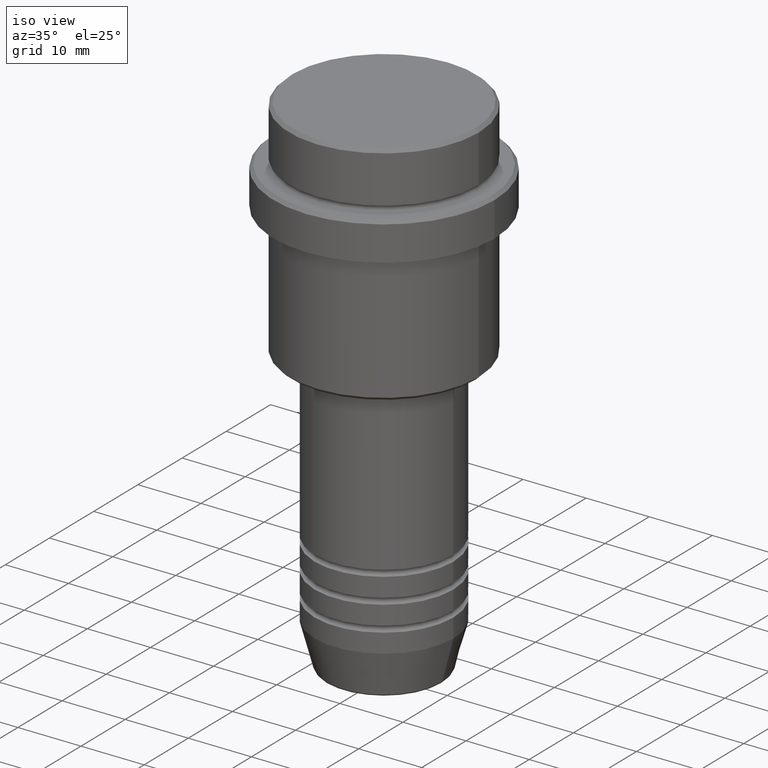
[diagram: clean part render]
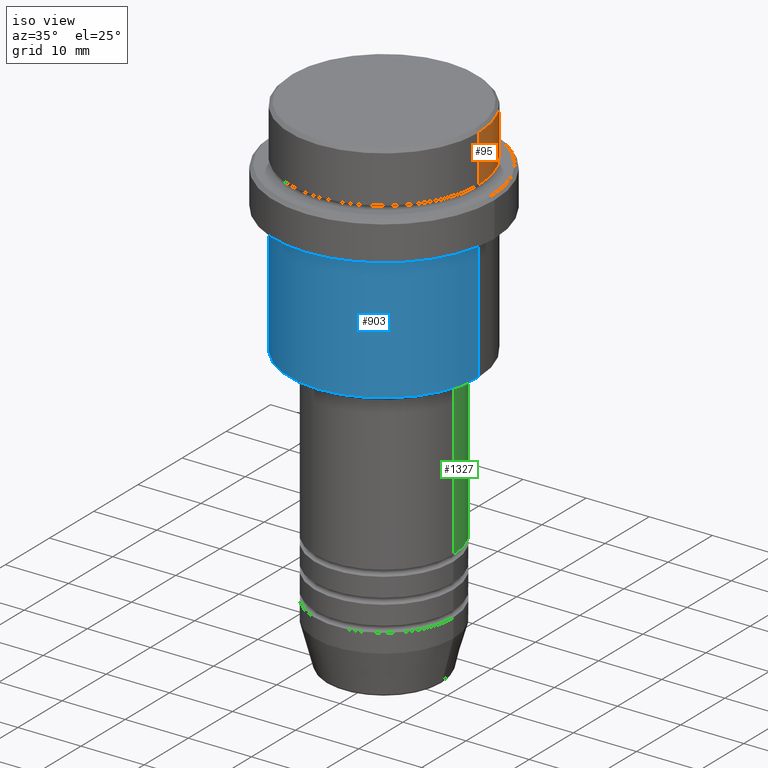
[diagram: same view with three faces highlighted in distinct colors, each labeled with its STEP entity id]
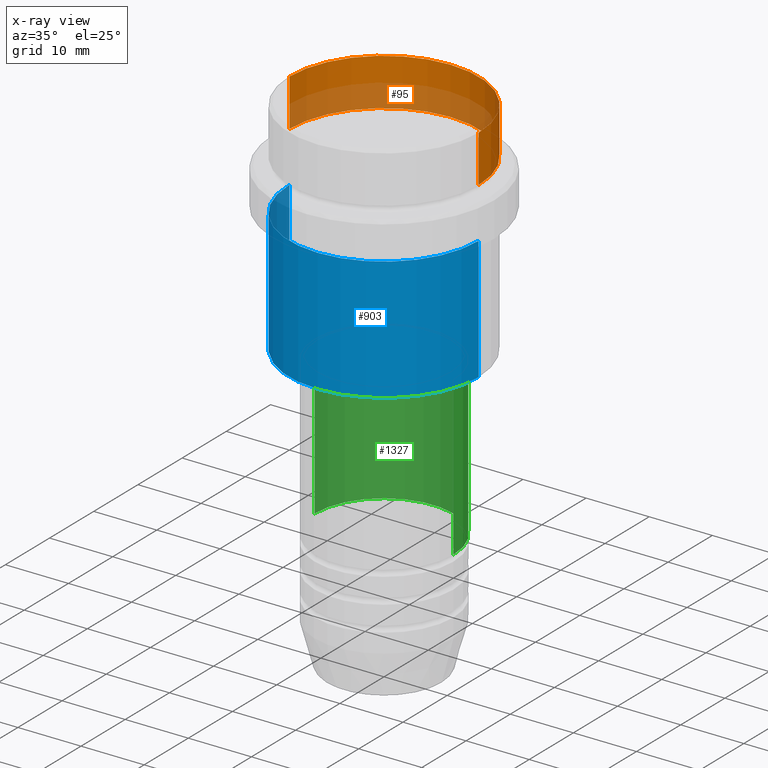
[diagram: x-ray of the same camera — body ghosted, the three highlighted faces saturated]
A machine part, iso view with three faces highlighted in distinct colors.
The next image is the same camera in x-ray (body ghosted, the three faces saturated) — at least one of them is partly hidden behind the body in this view.
Their STEP definitions:

[orange] entity #95 — the highlighted cylindrical surface (partial cylindrical patch) has radius 15 mm, axis along (-0, -0, 1).
#9 = ORIENTED_EDGE ( 'NONE', *, *, #926, .F. ) ;
#34 = ORIENTED_EDGE ( 'NONE', *, *, #1005, .T. ) ;
#95 = ADVANCED_FACE ( 'NONE', ( #1018 ), #773, .T. ) ;
#99 = VERTEX_POINT ( 'NONE', #449 ) ;
#155 = ORIENTED_EDGE ( 'NONE', *, *, #1360, .T. ) ;
#173 = AXIS2_PLACEMENT_3D ( 'NONE', #454, #1102, #352 ) ;
#194 = LINE ( 'NONE', #1076, #653 ) ;
#237 = CIRCLE ( 'NONE', #173, 15.00000000000000000 ) ;
#281 = VERTEX_POINT ( 'NONE', #927 ) ;
#294 = DIRECTION ( 'NONE',  ( -0.000000000000000000, -0.000000000000000000, 1.000000000000000000 ) ) ;
#352 = DIRECTION ( 'NONE',  ( 1.000000000000000000, 0.000000000000000000, 0.000000000000000000 ) ) ;
#360 = CARTESIAN_POINT ( 'NONE',  ( 15.00000000000000000, 0.000000000000000000, 0.000000000000000000 ) ) ;
#449 = CARTESIAN_POINT ( 'NONE',  ( 15.00000000000000000, 0.000000000000000000, -7.999999999999998224 ) ) ;
#454 = CARTESIAN_POINT ( 'NONE',  ( 0.000000000000000000, 0.000000000000000000, -7.999999999999998224 ) ) ;
#457 = DIRECTION ( 'NONE',  ( -0.000000000000000000, -0.000000000000000000, 1.000000000000000000 ) ) ;
#459 = CARTESIAN_POINT ( 'NONE',  ( -15.00000000000000000, 1.836970198721029589E-15, -0.4999999999999970024 ) ) ;
#462 = CARTESIAN_POINT ( 'NONE',  ( 0.000000000000000000, 0.000000000000000000, 0.000000000000000000 ) ) ;
#595 = CARTESIAN_POINT ( 'NONE',  ( 0.000000000000000000, 0.000000000000000000, -0.4999999999999970024 ) ) ;
#653 = VECTOR ( 'NONE', #294, 1000.000000000000000 ) ;
#715 = DIRECTION ( 'NONE',  ( 0.000000000000000000, 0.000000000000000000, -1.000000000000000000 ) ) ;
#773 = CYLINDRICAL_SURFACE ( 'NONE', #934, 15.00000000000000000 ) ;
#798 = DIRECTION ( 'NONE',  ( -0.000000000000000000, -0.000000000000000000, 1.000000000000000000 ) ) ;
#831 = EDGE_CURVE ( 'NONE', #99, #1205, #237, .T. ) ;
#879 = VERTEX_POINT ( 'NONE', #459 ) ;
#882 = VECTOR ( 'NONE', #798, 1000.000000000000000 ) ;
#926 = EDGE_CURVE ( 'NONE', #99, #281, #1340, .T. ) ;
#927 = CARTESIAN_POINT ( 'NONE',  ( 15.00000000000000000, 0.000000000000000000, -0.4999999999999970024 ) ) ;
#934 = AXIS2_PLACEMENT_3D ( 'NONE', #462, #457, #1000 ) ;
#1000 = DIRECTION ( 'NONE',  ( 1.000000000000000000, 0.000000000000000000, 0.000000000000000000 ) ) ;
#1005 = EDGE_CURVE ( 'NONE', #879, #281, #1224, .T. ) ;
#1018 = FACE_OUTER_BOUND ( 'NONE', #1140, .T. ) ;
#1035 = ORIENTED_EDGE ( 'NONE', *, *, #831, .T. ) ;
#1057 = CARTESIAN_POINT ( 'NONE',  ( -15.00000000000000000, 1.836970198721029589E-15, -7.999999999999998224 ) ) ;
#1076 = CARTESIAN_POINT ( 'NONE',  ( -15.00000000000000000, 1.836970198721029589E-15, 0.000000000000000000 ) ) ;
#1102 = DIRECTION ( 'NONE',  ( -0.000000000000000000, -0.000000000000000000, 1.000000000000000000 ) ) ;
#1140 = EDGE_LOOP ( 'NONE', ( #1035, #155, #34, #9 ) ) ;
#1201 = AXIS2_PLACEMENT_3D ( 'NONE', #595, #715, #1265 ) ;
#1205 = VERTEX_POINT ( 'NONE', #1057 ) ;
#1224 = CIRCLE ( 'NONE', #1201, 15.00000000000000000 ) ;
#1265 = DIRECTION ( 'NONE',  ( 1.000000000000000000, 0.000000000000000000, 0.000000000000000000 ) ) ;
#1340 = LINE ( 'NONE', #360, #882 ) ;
#1360 = EDGE_CURVE ( 'NONE', #1205, #879, #194, .T. ) ;

[blue] entity #903 — the highlighted cylindrical surface (partial cylindrical patch) has radius 15 mm, axis along (-0, -0, 1).
#4 = ORIENTED_EDGE ( 'NONE', *, *, #962, .F. ) ;
#27 = CARTESIAN_POINT ( 'NONE',  ( 15.00000000000000000, 0.000000000000000000, 0.000000000000000000 ) ) ;
#37 = AXIS2_PLACEMENT_3D ( 'NONE', #90, #1092, #738 ) ;
#90 = CARTESIAN_POINT ( 'NONE',  ( 0.000000000000000000, 0.000000000000000000, -16.00000000000000000 ) ) ;
#100 = CARTESIAN_POINT ( 'NONE',  ( 15.00000000000000000, 0.000000000000000000, -35.49999999999998579 ) ) ;
#126 = LINE ( 'NONE', #27, #743 ) ;
#138 = CARTESIAN_POINT ( 'NONE',  ( 0.000000000000000000, 0.000000000000000000, -35.49999999999998579 ) ) ;
#143 = EDGE_CURVE ( 'NONE', #1129, #670, #363, .T. ) ;
#179 = ORIENTED_EDGE ( 'NONE', *, *, #603, .T. ) ;
#248 = DIRECTION ( 'NONE',  ( -0.000000000000000000, -0.000000000000000000, 1.000000000000000000 ) ) ;
#349 = DIRECTION ( 'NONE',  ( -1.000000000000000000, 0.000000000000000000, 0.000000000000000000 ) ) ;
#363 = CIRCLE ( 'NONE', #912, 15.00000000000000000 ) ;
#405 = LINE ( 'NONE', #1141, #1367 ) ;
#456 = EDGE_CURVE ( 'NONE', #1261, #1144, #1200, .T. ) ;
#464 = ORIENTED_EDGE ( 'NONE', *, *, #143, .T. ) ;
#515 = AXIS2_PLACEMENT_3D ( 'NONE', #572, #248, #890 ) ;
#535 = CARTESIAN_POINT ( 'NONE',  ( -15.00000000000000000, 1.836970198721029589E-15, -35.49999999999998579 ) ) ;
#572 = CARTESIAN_POINT ( 'NONE',  ( 0.000000000000000000, 0.000000000000000000, 0.000000000000000000 ) ) ;
#603 = EDGE_CURVE ( 'NONE', #670, #1144, #126, .T. ) ;
#670 = VERTEX_POINT ( 'NONE', #100 ) ;
#738 = DIRECTION ( 'NONE',  ( 1.000000000000000000, 0.000000000000000000, 0.000000000000000000 ) ) ;
#743 = VECTOR ( 'NONE', #1336, 1000.000000000000000 ) ;
#819 = DIRECTION ( 'NONE',  ( -0.000000000000000000, -0.000000000000000000, 1.000000000000000000 ) ) ;
#823 = CARTESIAN_POINT ( 'NONE',  ( -15.00000000000000355, 1.836970198721029983E-15, -16.00000000000000000 ) ) ;
#876 = ORIENTED_EDGE ( 'NONE', *, *, #456, .F. ) ;
#890 = DIRECTION ( 'NONE',  ( 1.000000000000000000, 0.000000000000000000, 0.000000000000000000 ) ) ;
#903 = ADVANCED_FACE ( 'NONE', ( #1117 ), #993, .T. ) ;
#912 = AXIS2_PLACEMENT_3D ( 'NONE', #138, #1120, #349 ) ;
#962 = EDGE_CURVE ( 'NONE', #1129, #1261, #405, .T. ) ;
#964 = CARTESIAN_POINT ( 'NONE',  ( 15.00000000000000178, 0.000000000000000000, -16.00000000000000000 ) ) ;
#971 = EDGE_LOOP ( 'NONE', ( #4, #464, #179, #876 ) ) ;
#993 = CYLINDRICAL_SURFACE ( 'NONE', #515, 15.00000000000000000 ) ;
#1092 = DIRECTION ( 'NONE',  ( -0.000000000000000000, -0.000000000000000000, 1.000000000000000000 ) ) ;
#1117 = FACE_OUTER_BOUND ( 'NONE', #971, .T. ) ;
#1120 = DIRECTION ( 'NONE',  ( -0.000000000000000000, -0.000000000000000000, 1.000000000000000000 ) ) ;
#1129 = VERTEX_POINT ( 'NONE', #535 ) ;
#1141 = CARTESIAN_POINT ( 'NONE',  ( -15.00000000000000000, 1.836970198721029589E-15, 0.000000000000000000 ) ) ;
#1144 = VERTEX_POINT ( 'NONE', #964 ) ;
#1200 = CIRCLE ( 'NONE', #37, 15.00000000000000178 ) ;
#1261 = VERTEX_POINT ( 'NONE', #823 ) ;
#1336 = DIRECTION ( 'NONE',  ( -0.000000000000000000, -0.000000000000000000, 1.000000000000000000 ) ) ;
#1367 = VECTOR ( 'NONE', #819, 1000.000000000000000 ) ;

[green] entity #1327 — the highlighted cylindrical surface (partial cylindrical patch) has radius 11 mm, axis along (-0, -0, 1).
#8 = ORIENTED_EDGE ( 'NONE', *, *, #1083, .T. ) ;
#72 = CYLINDRICAL_SURFACE ( 'NONE', #658, 11.00000000000000000 ) ;
#105 = CIRCLE ( 'NONE', #494, 10.99999999999999822 ) ;
#158 = FACE_OUTER_BOUND ( 'NONE', #1116, .T. ) ;
#169 = VERTEX_POINT ( 'NONE', #669 ) ;
#178 = DIRECTION ( 'NONE',  ( 1.000000000000000000, 0.000000000000000000, 0.000000000000000000 ) ) ;
#232 = DIRECTION ( 'NONE',  ( -0.000000000000000000, -0.000000000000000000, 1.000000000000000000 ) ) ;
#266 = VECTOR ( 'NONE', #285, 1000.000000000000000 ) ;
#285 = DIRECTION ( 'NONE',  ( -0.000000000000000000, -0.000000000000000000, 1.000000000000000000 ) ) ;
#310 = CARTESIAN_POINT ( 'NONE',  ( 10.99999999999999822, 0.000000000000000000, -37.00000000000000000 ) ) ;
#377 = VERTEX_POINT ( 'NONE', #310 ) ;
#384 = VECTOR ( 'NONE', #579, 1000.000000000000000 ) ;
#403 = DIRECTION ( 'NONE',  ( -0.000000000000000000, -0.000000000000000000, 1.000000000000000000 ) ) ;
#494 = AXIS2_PLACEMENT_3D ( 'NONE', #1216, #232, #673 ) ;
#507 = CARTESIAN_POINT ( 'NONE',  ( -10.99999999999999822, 1.347111479062088207E-15, -37.00000000000000000 ) ) ;
#579 = DIRECTION ( 'NONE',  ( -0.000000000000000000, -0.000000000000000000, 1.000000000000000000 ) ) ;
#601 = CARTESIAN_POINT ( 'NONE',  ( -11.00000000000000000, 1.347111479062088405E-15, 0.000000000000000000 ) ) ;
#618 = EDGE_CURVE ( 'NONE', #377, #1253, #105, .T. ) ;
#658 = AXIS2_PLACEMENT_3D ( 'NONE', #1384, #403, #833 ) ;
#669 = CARTESIAN_POINT ( 'NONE',  ( -11.00000000000000000, 1.347111479062088405E-15, -61.99999999999987921 ) ) ;
#673 = DIRECTION ( 'NONE',  ( 1.000000000000000000, 0.000000000000000000, 0.000000000000000000 ) ) ;
#833 = DIRECTION ( 'NONE',  ( 1.000000000000000000, 0.000000000000000000, 0.000000000000000000 ) ) ;
#843 = ORIENTED_EDGE ( 'NONE', *, *, #1315, .T. ) ;
#854 = EDGE_CURVE ( 'NONE', #1338, #377, #1219, .T. ) ;
#938 = ORIENTED_EDGE ( 'NONE', *, *, #854, .F. ) ;
#943 = DIRECTION ( 'NONE',  ( -0.000000000000000000, -0.000000000000000000, 1.000000000000000000 ) ) ;
#957 = CARTESIAN_POINT ( 'NONE',  ( 11.00000000000000000, 0.000000000000000000, -61.99999999999987921 ) ) ;
#1021 = CARTESIAN_POINT ( 'NONE',  ( 0.000000000000000000, 0.000000000000000000, -61.99999999999987921 ) ) ;
#1079 = ORIENTED_EDGE ( 'NONE', *, *, #618, .F. ) ;
#1083 = EDGE_CURVE ( 'NONE', #169, #1253, #1275, .T. ) ;
#1106 = CARTESIAN_POINT ( 'NONE',  ( 11.00000000000000000, 0.000000000000000000, 0.000000000000000000 ) ) ;
#1116 = EDGE_LOOP ( 'NONE', ( #843, #8, #1079, #938 ) ) ;
#1156 = AXIS2_PLACEMENT_3D ( 'NONE', #1021, #943, #178 ) ;
#1216 = CARTESIAN_POINT ( 'NONE',  ( 0.000000000000000000, 0.000000000000000000, -37.00000000000000000 ) ) ;
#1219 = LINE ( 'NONE', #1106, #384 ) ;
#1253 = VERTEX_POINT ( 'NONE', #507 ) ;
#1275 = LINE ( 'NONE', #601, #266 ) ;
#1315 = EDGE_CURVE ( 'NONE', #1338, #169, #1415, .T. ) ;
#1327 = ADVANCED_FACE ( 'NONE', ( #158 ), #72, .T. ) ;
#1338 = VERTEX_POINT ( 'NONE', #957 ) ;
#1384 = CARTESIAN_POINT ( 'NONE',  ( 0.000000000000000000, 0.000000000000000000, 0.000000000000000000 ) ) ;
#1415 = CIRCLE ( 'NONE', #1156, 11.00000000000000000 ) ;